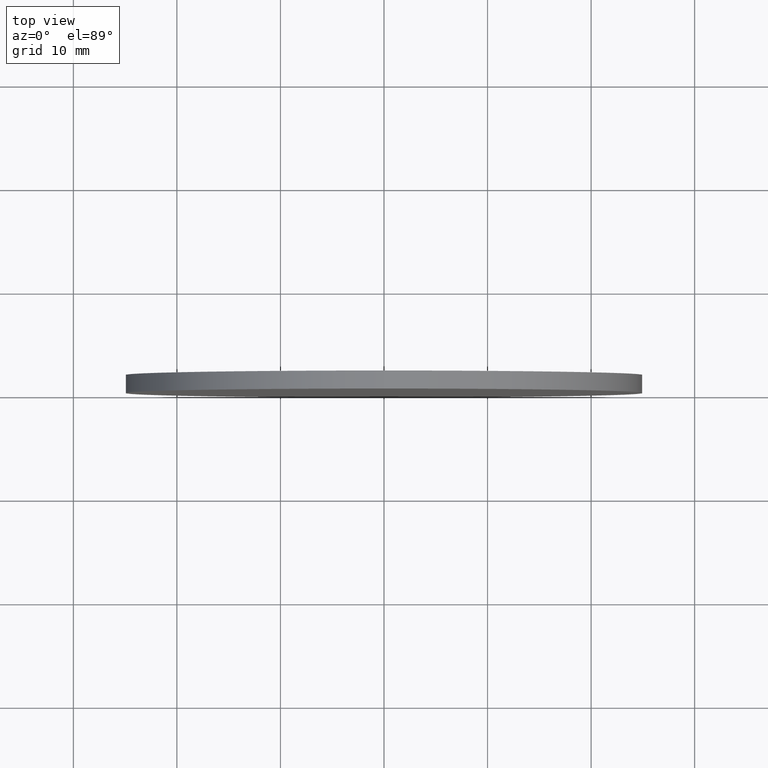
[diagram: clean part render]
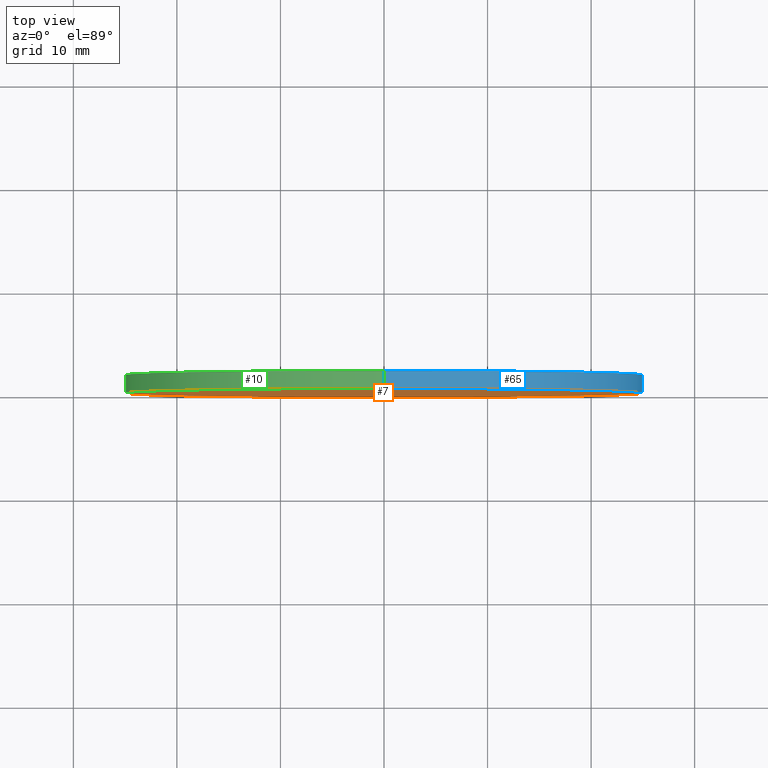
[diagram: same view with three faces highlighted in distinct colors, each labeled with its STEP entity id]
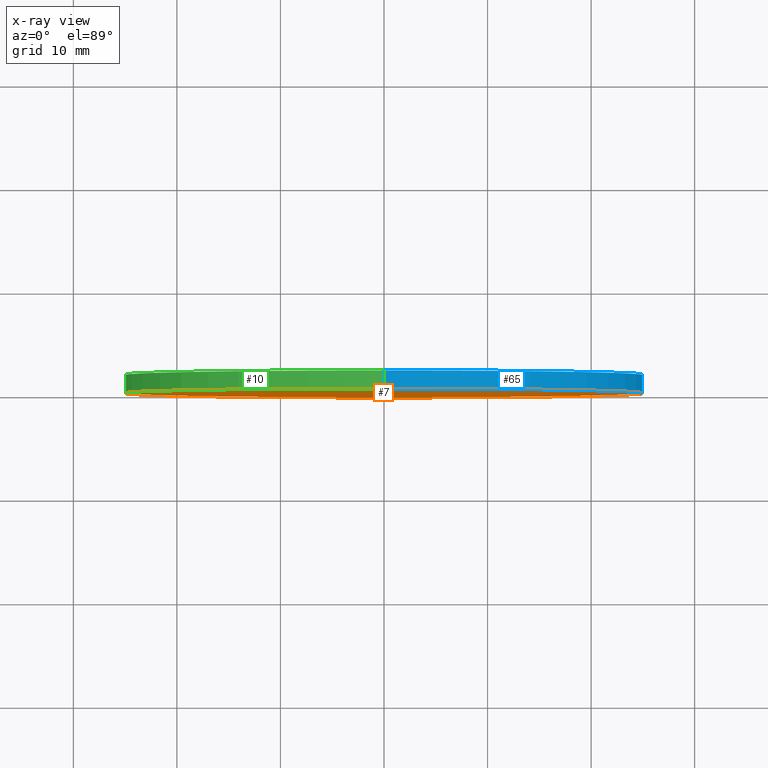
[diagram: x-ray of the same camera — body ghosted, the three highlighted faces saturated]
A machine part, top view with three faces highlighted in distinct colors.
The next image is the same camera in x-ray (body ghosted, the three faces saturated) — at least one of them is partly hidden behind the body in this view.
Their STEP definitions:

[orange] entity #7 — the highlighted planar face has unit normal (0, 1, 0).
#7 = ADVANCED_FACE ( 'NONE', ( #54 ), #58, .F. ) ;
#24 = DIRECTION ( 'NONE',  ( 0.0000000000000000000, 1.000000000000000000, 0.0000000000000000000 ) ) ;
#30 = VERTEX_POINT ( 'NONE', #51 ) ;
#31 = CARTESIAN_POINT ( 'NONE',  ( 0.0000000000000000000, 0.0000000000000000000, 0.0000000000000000000 ) ) ;
#34 = ORIENTED_EDGE ( 'NONE', *, *, #107, .F. ) ;
#35 = AXIS2_PLACEMENT_3D ( 'NONE', #139, #24, #103 ) ;
#37 = VERTEX_POINT ( 'NONE', #52 ) ;
#43 = ORIENTED_EDGE ( 'NONE', *, *, #126, .F. ) ;
#49 = EDGE_LOOP ( 'NONE', ( #43, #34 ) ) ;
#51 = CARTESIAN_POINT ( 'NONE',  ( 3.061616997868383000E-015, 0.0000000000000000000, 25.00000000000000000 ) ) ;
#52 = CARTESIAN_POINT ( 'NONE',  ( 0.0000000000000000000, 0.0000000000000000000, -25.00000000000000000 ) ) ;
#54 = FACE_OUTER_BOUND ( 'NONE', #49, .T. ) ;
#56 = DIRECTION ( 'NONE',  ( 0.0000000000000000000, 1.000000000000000000, 0.0000000000000000000 ) ) ;
#58 = PLANE ( 'NONE',  #35 ) ;
#76 = CARTESIAN_POINT ( 'NONE',  ( 0.0000000000000000000, 0.0000000000000000000, 0.0000000000000000000 ) ) ;
#85 = AXIS2_PLACEMENT_3D ( 'NONE', #31, #123, #116 ) ;
#87 = DIRECTION ( 'NONE',  ( 0.0000000000000000000, 0.0000000000000000000, 1.000000000000000000 ) ) ;
#103 = DIRECTION ( 'NONE',  ( 0.0000000000000000000, -0.0000000000000000000, 1.000000000000000000 ) ) ;
#107 = EDGE_CURVE ( 'NONE', #30, #37, #136, .T. ) ;
#115 = CIRCLE ( 'NONE', #122, 25.00000000000000000 ) ;
#116 = DIRECTION ( 'NONE',  ( 0.0000000000000000000, 0.0000000000000000000, 1.000000000000000000 ) ) ;
#122 = AXIS2_PLACEMENT_3D ( 'NONE', #76, #56, #87 ) ;
#123 = DIRECTION ( 'NONE',  ( 0.0000000000000000000, 1.000000000000000000, 0.0000000000000000000 ) ) ;
#126 = EDGE_CURVE ( 'NONE', #37, #30, #115, .T. ) ;
#136 = CIRCLE ( 'NONE', #85, 25.00000000000000000 ) ;
#139 = CARTESIAN_POINT ( 'NONE',  ( 0.0000000000000000000, 0.0000000000000000000, 0.0000000000000000000 ) ) ;

[blue] entity #65 — the highlighted cylindrical surface (partial cylindrical patch) has radius 25 mm, axis along (-0, -1, -0).
#2 = DIRECTION ( 'NONE',  ( 0.0000000000000000000, 0.0000000000000000000, -1.000000000000000000 ) ) ;
#3 = ORIENTED_EDGE ( 'NONE', *, *, #80, .F. ) ;
#4 = EDGE_CURVE ( 'NONE', #27, #135, #82, .T. ) ;
#8 = ORIENTED_EDGE ( 'NONE', *, *, #4, .F. ) ;
#17 = LINE ( 'NONE', #86, #77 ) ;
#18 = CARTESIAN_POINT ( 'NONE',  ( 0.0000000000000000000, 1.740000000000000000, 0.0000000000000000000 ) ) ;
#19 = DIRECTION ( 'NONE',  ( -0.0000000000000000000, -1.000000000000000000, -0.0000000000000000000 ) ) ;
#21 = ORIENTED_EDGE ( 'NONE', *, *, #32, .T. ) ;
#27 = VERTEX_POINT ( 'NONE', #90 ) ;
#29 = DIRECTION ( 'NONE',  ( -0.0000000000000000000, -1.000000000000000000, -0.0000000000000000000 ) ) ;
#30 = VERTEX_POINT ( 'NONE', #51 ) ;
#31 = CARTESIAN_POINT ( 'NONE',  ( 0.0000000000000000000, 0.0000000000000000000, 0.0000000000000000000 ) ) ;
#32 = EDGE_CURVE ( 'NONE', #27, #30, #138, .T. ) ;
#37 = VERTEX_POINT ( 'NONE', #52 ) ;
#44 = DIRECTION ( 'NONE',  ( 0.0000000000000000000, 0.0000000000000000000, 1.000000000000000000 ) ) ;
#51 = CARTESIAN_POINT ( 'NONE',  ( 3.061616997868383000E-015, 0.0000000000000000000, 25.00000000000000000 ) ) ;
#52 = CARTESIAN_POINT ( 'NONE',  ( 0.0000000000000000000, 0.0000000000000000000, -25.00000000000000000 ) ) ;
#60 = ORIENTED_EDGE ( 'NONE', *, *, #107, .T. ) ;
#65 = ADVANCED_FACE ( 'NONE', ( #70 ), #71, .T. ) ;
#70 = FACE_OUTER_BOUND ( 'NONE', #114, .T. ) ;
#71 = CYLINDRICAL_SURFACE ( 'NONE', #75, 25.00000000000000000 ) ;
#75 = AXIS2_PLACEMENT_3D ( 'NONE', #18, #19, #2 ) ;
#77 = VECTOR ( 'NONE', #29, 1000.000000000000000 ) ;
#80 = EDGE_CURVE ( 'NONE', #135, #37, #17, .T. ) ;
#82 = CIRCLE ( 'NONE', #120, 25.00000000000000000 ) ;
#85 = AXIS2_PLACEMENT_3D ( 'NONE', #31, #123, #116 ) ;
#86 = CARTESIAN_POINT ( 'NONE',  ( 0.0000000000000000000, 1.740000000000000000, -25.00000000000000000 ) ) ;
#88 = DIRECTION ( 'NONE',  ( 0.0000000000000000000, 1.000000000000000000, 0.0000000000000000000 ) ) ;
#90 = CARTESIAN_POINT ( 'NONE',  ( 3.061616997868383000E-015, 1.740000000000000000, 25.00000000000000000 ) ) ;
#92 = DIRECTION ( 'NONE',  ( -0.0000000000000000000, -1.000000000000000000, -0.0000000000000000000 ) ) ;
#107 = EDGE_CURVE ( 'NONE', #30, #37, #136, .T. ) ;
#114 = EDGE_LOOP ( 'NONE', ( #8, #21, #60, #3 ) ) ;
#116 = DIRECTION ( 'NONE',  ( 0.0000000000000000000, 0.0000000000000000000, 1.000000000000000000 ) ) ;
#120 = AXIS2_PLACEMENT_3D ( 'NONE', #133, #88, #44 ) ;
#121 = VECTOR ( 'NONE', #92, 1000.000000000000000 ) ;
#123 = DIRECTION ( 'NONE',  ( 0.0000000000000000000, 1.000000000000000000, 0.0000000000000000000 ) ) ;
#129 = CARTESIAN_POINT ( 'NONE',  ( 0.0000000000000000000, 1.740000000000000000, -25.00000000000000000 ) ) ;
#133 = CARTESIAN_POINT ( 'NONE',  ( 0.0000000000000000000, 1.740000000000000000, 0.0000000000000000000 ) ) ;
#134 = CARTESIAN_POINT ( 'NONE',  ( 3.061616997868383000E-015, 1.740000000000000000, 25.00000000000000000 ) ) ;
#135 = VERTEX_POINT ( 'NONE', #129 ) ;
#136 = CIRCLE ( 'NONE', #85, 25.00000000000000000 ) ;
#138 = LINE ( 'NONE', #134, #121 ) ;

[green] entity #10 — the highlighted cylindrical surface (partial cylindrical patch) has radius 25 mm, axis along (-0, -1, -0).
#10 = ADVANCED_FACE ( 'NONE', ( #127 ), #111, .T. ) ;
#12 = ORIENTED_EDGE ( 'NONE', *, *, #126, .T. ) ;
#15 = DIRECTION ( 'NONE',  ( -0.0000000000000000000, -1.000000000000000000, -0.0000000000000000000 ) ) ;
#17 = LINE ( 'NONE', #86, #77 ) ;
#23 = CARTESIAN_POINT ( 'NONE',  ( 0.0000000000000000000, 1.740000000000000000, 0.0000000000000000000 ) ) ;
#25 = ORIENTED_EDGE ( 'NONE', *, *, #113, .F. ) ;
#26 = AXIS2_PLACEMENT_3D ( 'NONE', #23, #15, #39 ) ;
#27 = VERTEX_POINT ( 'NONE', #90 ) ;
#29 = DIRECTION ( 'NONE',  ( -0.0000000000000000000, -1.000000000000000000, -0.0000000000000000000 ) ) ;
#30 = VERTEX_POINT ( 'NONE', #51 ) ;
#32 = EDGE_CURVE ( 'NONE', #27, #30, #138, .T. ) ;
#36 = CIRCLE ( 'NONE', #69, 25.00000000000000000 ) ;
#37 = VERTEX_POINT ( 'NONE', #52 ) ;
#38 = DIRECTION ( 'NONE',  ( 0.0000000000000000000, 0.0000000000000000000, 1.000000000000000000 ) ) ;
#39 = DIRECTION ( 'NONE',  ( 0.0000000000000000000, 0.0000000000000000000, -1.000000000000000000 ) ) ;
#51 = CARTESIAN_POINT ( 'NONE',  ( 3.061616997868383000E-015, 0.0000000000000000000, 25.00000000000000000 ) ) ;
#52 = CARTESIAN_POINT ( 'NONE',  ( 0.0000000000000000000, 0.0000000000000000000, -25.00000000000000000 ) ) ;
#56 = DIRECTION ( 'NONE',  ( 0.0000000000000000000, 1.000000000000000000, 0.0000000000000000000 ) ) ;
#66 = ORIENTED_EDGE ( 'NONE', *, *, #32, .F. ) ;
#69 = AXIS2_PLACEMENT_3D ( 'NONE', #108, #106, #38 ) ;
#76 = CARTESIAN_POINT ( 'NONE',  ( 0.0000000000000000000, 0.0000000000000000000, 0.0000000000000000000 ) ) ;
#77 = VECTOR ( 'NONE', #29, 1000.000000000000000 ) ;
#80 = EDGE_CURVE ( 'NONE', #135, #37, #17, .T. ) ;
#86 = CARTESIAN_POINT ( 'NONE',  ( 0.0000000000000000000, 1.740000000000000000, -25.00000000000000000 ) ) ;
#87 = DIRECTION ( 'NONE',  ( 0.0000000000000000000, 0.0000000000000000000, 1.000000000000000000 ) ) ;
#90 = CARTESIAN_POINT ( 'NONE',  ( 3.061616997868383000E-015, 1.740000000000000000, 25.00000000000000000 ) ) ;
#92 = DIRECTION ( 'NONE',  ( -0.0000000000000000000, -1.000000000000000000, -0.0000000000000000000 ) ) ;
#102 = ORIENTED_EDGE ( 'NONE', *, *, #80, .T. ) ;
#104 = EDGE_LOOP ( 'NONE', ( #66, #25, #102, #12 ) ) ;
#106 = DIRECTION ( 'NONE',  ( 0.0000000000000000000, 1.000000000000000000, 0.0000000000000000000 ) ) ;
#108 = CARTESIAN_POINT ( 'NONE',  ( 0.0000000000000000000, 1.740000000000000000, 0.0000000000000000000 ) ) ;
#111 = CYLINDRICAL_SURFACE ( 'NONE', #26, 25.00000000000000000 ) ;
#113 = EDGE_CURVE ( 'NONE', #135, #27, #36, .T. ) ;
#115 = CIRCLE ( 'NONE', #122, 25.00000000000000000 ) ;
#121 = VECTOR ( 'NONE', #92, 1000.000000000000000 ) ;
#122 = AXIS2_PLACEMENT_3D ( 'NONE', #76, #56, #87 ) ;
#126 = EDGE_CURVE ( 'NONE', #37, #30, #115, .T. ) ;
#127 = FACE_OUTER_BOUND ( 'NONE', #104, .T. ) ;
#129 = CARTESIAN_POINT ( 'NONE',  ( 0.0000000000000000000, 1.740000000000000000, -25.00000000000000000 ) ) ;
#134 = CARTESIAN_POINT ( 'NONE',  ( 3.061616997868383000E-015, 1.740000000000000000, 25.00000000000000000 ) ) ;
#135 = VERTEX_POINT ( 'NONE', #129 ) ;
#138 = LINE ( 'NONE', #134, #121 ) ;